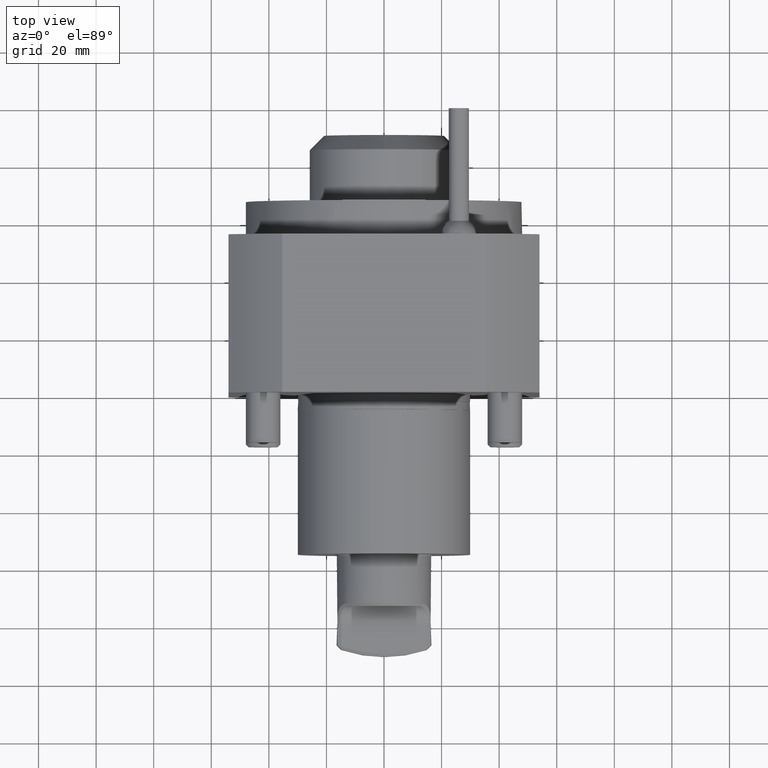
[diagram: clean part render]
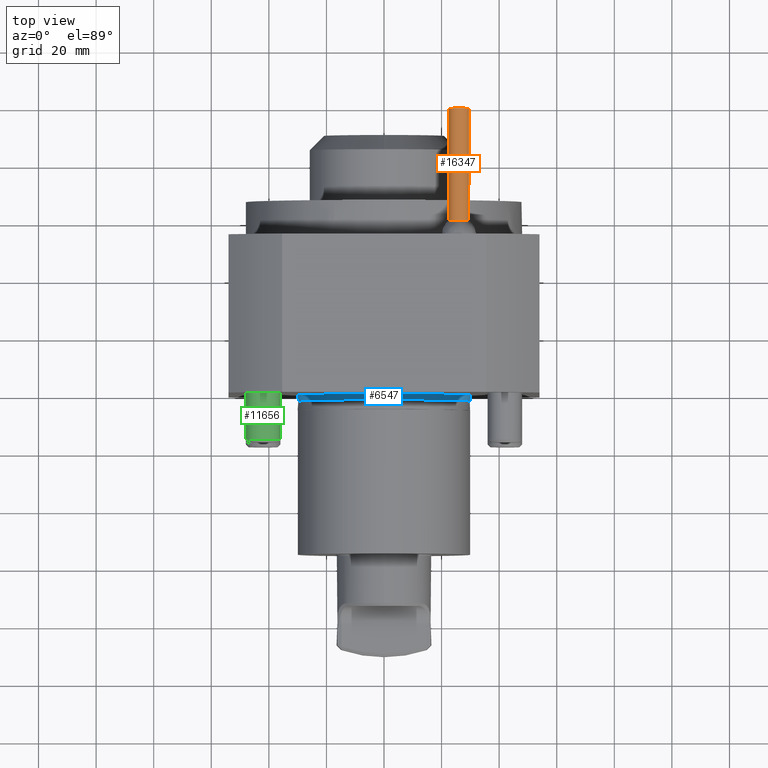
[diagram: same view with three faces highlighted in distinct colors, each labeled with its STEP entity id]
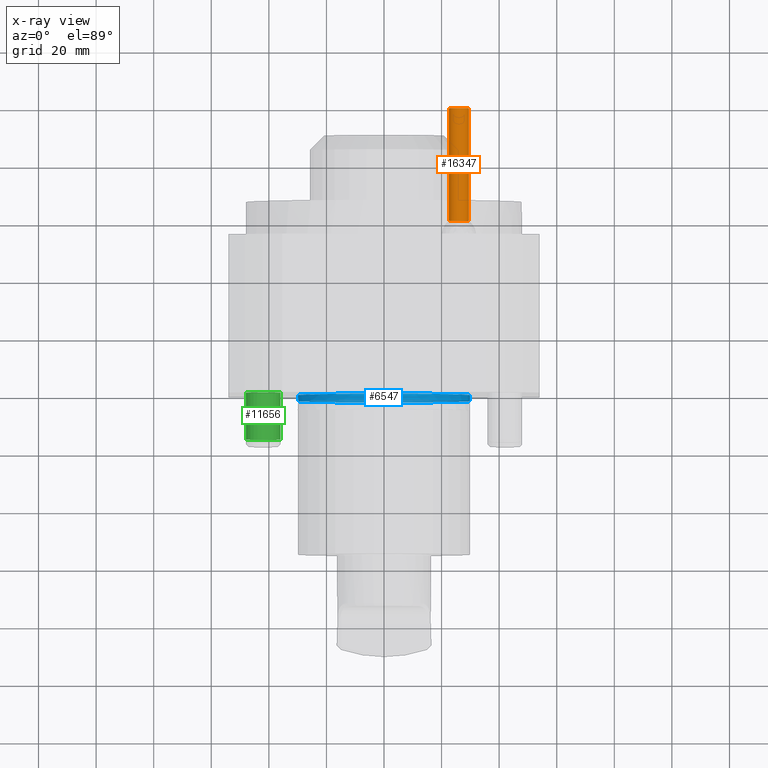
[diagram: x-ray of the same camera — body ghosted, the three highlighted faces saturated]
A machine part, top view with three faces highlighted in distinct colors.
The next image is the same camera in x-ray (body ghosted, the three faces saturated) — at least one of them is partly hidden behind the body in this view.
Their STEP definitions:

[orange] entity #16347 — the highlighted cylindrical surface (bore or boss wall) has radius 3.5 mm, axis along (-0, -1, -0).
#165 = DIRECTION ( 'NONE',  ( -2.279922282712377608E-14, 0.000000000000000000, 1.000000000000000000 ) ) ;
#388 = VERTEX_POINT ( 'NONE', #12346 ) ;
#488 = VERTEX_POINT ( 'NONE', #10160 ) ;
#936 = EDGE_CURVE ( 'NONE', #488, #488, #9325, .T. ) ;
#3472 = EDGE_CURVE ( 'NONE', #8779, #388, #6182, .T. ) ;
#3680 = FACE_OUTER_BOUND ( 'NONE', #20586, .T. ) ;
#4807 = AXIS2_PLACEMENT_3D ( 'NONE', #6404, #12760, #165 ) ;
#4845 = CYLINDRICAL_SURFACE ( 'NONE', #4807, 3.499999999999996003 ) ;
#4924 = DIRECTION ( 'NONE',  ( -2.279922282712372875E-14, 0.000000000000000000, 1.000000000000000000 ) ) ;
#5576 = CARTESIAN_POINT ( 'NONE',  ( 26.00000000000002132, 98.70124522925821964, 54.00000000000001421 ) ) ;
#6182 = CIRCLE ( 'NONE', #6828, 3.499999999999996003 ) ;
#6404 = CARTESIAN_POINT ( 'NONE',  ( 26.00000000000001776, 49.70124522925821964, 54.00000000000001421 ) ) ;
#6828 = AXIS2_PLACEMENT_3D ( 'NONE', #5576, #7126, #18391 ) ;
#7024 =( BOUNDED_CURVE ( )  B_SPLINE_CURVE ( 3, ( #10343, #10440, #18278, #15258 ),
 .UNSPECIFIED., .F., .T. ) 
 B_SPLINE_CURVE_WITH_KNOTS ( ( 4, 4 ),
 ( 4.712388980384689674, 7.853981633974482790 ),
 .UNSPECIFIED. ) 
 CURVE ( )  GEOMETRIC_REPRESENTATION_ITEM ( )  RATIONAL_B_SPLINE_CURVE ( ( 1.000000000000000000, 0.3333333333333333703, 0.3333333333333333703, 1.000000000000000000 ) ) 
 REPRESENTATION_ITEM ( '' )  );
#7126 = DIRECTION ( 'NONE',  ( -1.060627097478742708E-16, -1.000000000000000000, -5.294015529799488176E-17 ) ) ;
#7510 = ORIENTED_EDGE ( 'NONE', *, *, #15322, .F. ) ;
#8327 = AXIS2_PLACEMENT_3D ( 'NONE', #12846, #14208, #4924 ) ;
#8779 = VERTEX_POINT ( 'NONE', #19850 ) ;
#9325 = CIRCLE ( 'NONE', #8327, 3.500000000000003109 ) ;
#10035 = FACE_OUTER_BOUND ( 'NONE', #18398, .T. ) ;
#10160 = CARTESIAN_POINT ( 'NONE',  ( 25.99999999999993605, 59.57464240166270031, 57.50000000000001421 ) ) ;
#10343 = CARTESIAN_POINT ( 'NONE',  ( 29.50000000000001421, 98.70124522925821964, 54.00000000000009237 ) ) ;
#10440 = CARTESIAN_POINT ( 'NONE',  ( 29.50000000000018119, 91.70124522925829069, 47.00000000000009948 ) ) ;
#12346 = CARTESIAN_POINT ( 'NONE',  ( 22.50000000000002842, 98.70124522925821964, 53.99999999999992895 ) ) ;
#12760 = DIRECTION ( 'NONE',  ( -1.060627097478742708E-16, -1.000000000000000000, -5.294015529799488176E-17 ) ) ;
#12846 = CARTESIAN_POINT ( 'NONE',  ( 26.00000000000001776, 59.57464240166270031, 54.00000000000001421 ) ) ;
#14208 = DIRECTION ( 'NONE',  ( -1.060627097478742708E-16, -1.000000000000000000, -5.294015529799488176E-17 ) ) ;
#15258 = CARTESIAN_POINT ( 'NONE',  ( 22.50000000000002842, 98.70124522925821964, 53.99999999999992895 ) ) ;
#15322 = EDGE_CURVE ( 'NONE', #8779, #388, #7024, .T. ) ;
#15765 = ORIENTED_EDGE ( 'NONE', *, *, #3472, .T. ) ;
#16347 = ADVANCED_FACE ( 'Defeature completata1_231', ( #3680, #10035 ), #4845, .T. ) ;
#18278 = CARTESIAN_POINT ( 'NONE',  ( 22.50000000000018474, 91.70124522925829069, 46.99999999999992895 ) ) ;
#18391 = DIRECTION ( 'NONE',  ( -2.279922282712377608E-14, 0.000000000000000000, 1.000000000000000000 ) ) ;
#18398 = EDGE_LOOP ( 'NONE', ( #18584 ) ) ;
#18584 = ORIENTED_EDGE ( 'NONE', *, *, #936, .F. ) ;
#19850 = CARTESIAN_POINT ( 'NONE',  ( 29.50000000000001421, 98.70124522925821964, 54.00000000000009237 ) ) ;
#20586 = EDGE_LOOP ( 'NONE', ( #7510, #15765 ) ) ;

[blue] entity #6547 — the highlighted cylindrical surface (bore or boss wall) has radius 29.9 mm, axis along (-0, -1, 0).
#2909 = DIRECTION ( 'NONE',  ( 1.224646799147353207E-16, 1.000000000000000000, 0.000000000000000000 ) ) ;
#3531 = EDGE_LOOP ( 'NONE', ( #11435 ) ) ;
#6547 = ADVANCED_FACE ( 'NONE', ( #14567, #16412 ), #14368, .T. ) ;
#7909 = AXIS2_PLACEMENT_3D ( 'NONE', #17771, #9862, #8807 ) ;
#8759 = AXIS2_PLACEMENT_3D ( 'NONE', #18566, #2909, #10712 ) ;
#8807 = DIRECTION ( 'NONE',  ( 1.000000000000000000, 0.000000000000000000, 0.000000000000000000 ) ) ;
#9862 = DIRECTION ( 'NONE',  ( -2.148727864268810004E-16, -1.000000000000000000, 8.036379577296822532E-17 ) ) ;
#10266 = VERTEX_POINT ( 'NONE', #16616 ) ;
#10407 = DIRECTION ( 'NONE',  ( -1.224646799147353207E-16, -1.000000000000000000, -0.000000000000000000 ) ) ;
#10712 = DIRECTION ( 'NONE',  ( 1.000000000000000000, -1.160350151155055003E-16, 0.000000000000000000 ) ) ;
#10967 = EDGE_CURVE ( 'NONE', #10266, #10266, #17735, .T. ) ;
#11435 = ORIENTED_EDGE ( 'NONE', *, *, #13921, .T. ) ;
#12907 = CIRCLE ( 'NONE', #17534, 29.89999999999999858 ) ;
#13673 = CARTESIAN_POINT ( 'NONE',  ( -4.338295230466129071E-18, -0.03542486889679456741, 0.000000000000000000 ) ) ;
#13921 = EDGE_CURVE ( 'NONE', #18515, #18515, #12907, .T. ) ;
#14368 = CYLINDRICAL_SURFACE ( 'NONE', #7909, 29.89999999999999858 ) ;
#14567 = FACE_OUTER_BOUND ( 'NONE', #16268, .T. ) ;
#16268 = EDGE_LOOP ( 'NONE', ( #17510 ) ) ;
#16412 = FACE_OUTER_BOUND ( 'NONE', #3531, .T. ) ;
#16616 = CARTESIAN_POINT ( 'NONE',  ( 29.89999999999999858, -2.126794919242024573, 0.000000000000000000 ) ) ;
#16714 = CARTESIAN_POINT ( 'NONE',  ( 29.89999999999999858, -0.03542486889679822420, 0.000000000000000000 ) ) ;
#17066 = DIRECTION ( 'NONE',  ( 1.000000000000000000, -1.223806800046347102E-16, 0.000000000000000000 ) ) ;
#17510 = ORIENTED_EDGE ( 'NONE', *, *, #10967, .T. ) ;
#17534 = AXIS2_PLACEMENT_3D ( 'NONE', #13673, #10407, #17066 ) ;
#17735 = CIRCLE ( 'NONE', #8759, 29.89999999999999858 ) ;
#17771 = CARTESIAN_POINT ( 'NONE',  ( 2.205292579674772681E-14, 84.56997102991110182, -1.017164330283828836E-14 ) ) ;
#18515 = VERTEX_POINT ( 'NONE', #16714 ) ;
#18566 = CARTESIAN_POINT ( 'NONE',  ( -2.604572590292577431E-16, -2.126794919242021020, 0.000000000000000000 ) ) ;

[green] entity #11656 — the highlighted cylindrical surface (bore or boss wall) has radius 6 mm, axis along (0, 1, -0).
#209 = EDGE_CURVE ( 'NONE', #6941, #6941, #11347, .T. ) ;
#620 = DIRECTION ( 'NONE',  ( 1.000000000000000000, -1.224646799147352714E-16, 0.000000000000000000 ) ) ;
#1894 = DIRECTION ( 'NONE',  ( 1.224646799147353207E-16, 1.000000000000000000, -1.232595164407830946E-32 ) ) ;
#2001 = CARTESIAN_POINT ( 'NONE',  ( -42.00000000000000000, -16.33599999999983154, 47.00000000000000000 ) ) ;
#3014 = ORIENTED_EDGE ( 'NONE', *, *, #14855, .T. ) ;
#3866 = DIRECTION ( 'NONE',  ( 0.5469441386039884945, 0.000000000000000000, -0.8371691043312222691 ) ) ;
#4307 = CIRCLE ( 'NONE', #5328, 5.999999999999788614 ) ;
#4328 = VERTEX_POINT ( 'NONE', #18404 ) ;
#5328 = AXIS2_PLACEMENT_3D ( 'NONE', #2001, #1894, #16342 ) ;
#5389 = CARTESIAN_POINT ( 'NONE',  ( -36.00000000000010658, -7.347880794883986616E-16, 47.00000000000000000 ) ) ;
#6941 = VERTEX_POINT ( 'NONE', #5389 ) ;
#7161 = CARTESIAN_POINT ( 'NONE',  ( -42.00000000000000000, 0.000000000000000000, 47.00000000000000000 ) ) ;
#7337 = EDGE_LOOP ( 'NONE', ( #3014 ) ) ;
#8335 = CARTESIAN_POINT ( 'NONE',  ( -41.99999999999998579, 86.44999999999991758, 47.00000000000000000 ) ) ;
#9556 = ORIENTED_EDGE ( 'NONE', *, *, #209, .T. ) ;
#11347 = CIRCLE ( 'NONE', #18691, 5.999999999999894307 ) ;
#11569 = FACE_OUTER_BOUND ( 'NONE', #7337, .T. ) ;
#11656 = ADVANCED_FACE ( 'Defeature completata1_229', ( #19506, #11569 ), #16456, .T. ) ;
#13468 = DIRECTION ( 'NONE',  ( 1.224646799147353207E-16, 1.000000000000000000, -1.232595164407830946E-32 ) ) ;
#13540 = DIRECTION ( 'NONE',  ( -1.224646799147353207E-16, -1.000000000000000000, -0.000000000000000000 ) ) ;
#14160 = AXIS2_PLACEMENT_3D ( 'NONE', #8335, #13468, #3866 ) ;
#14855 = EDGE_CURVE ( 'NONE', #4328, #4328, #4307, .T. ) ;
#16040 = EDGE_LOOP ( 'NONE', ( #9556 ) ) ;
#16342 = DIRECTION ( 'NONE',  ( 0.5469441386039884945, 0.000000000000000000, -0.8371691043312223801 ) ) ;
#16456 = CYLINDRICAL_SURFACE ( 'NONE', #14160, 5.999999999999888978 ) ;
#18404 = CARTESIAN_POINT ( 'NONE',  ( -38.71833516837618561, -16.33599999999983154, 41.97698537401284113 ) ) ;
#18691 = AXIS2_PLACEMENT_3D ( 'NONE', #7161, #13540, #620 ) ;
#19506 = FACE_OUTER_BOUND ( 'NONE', #16040, .T. ) ;